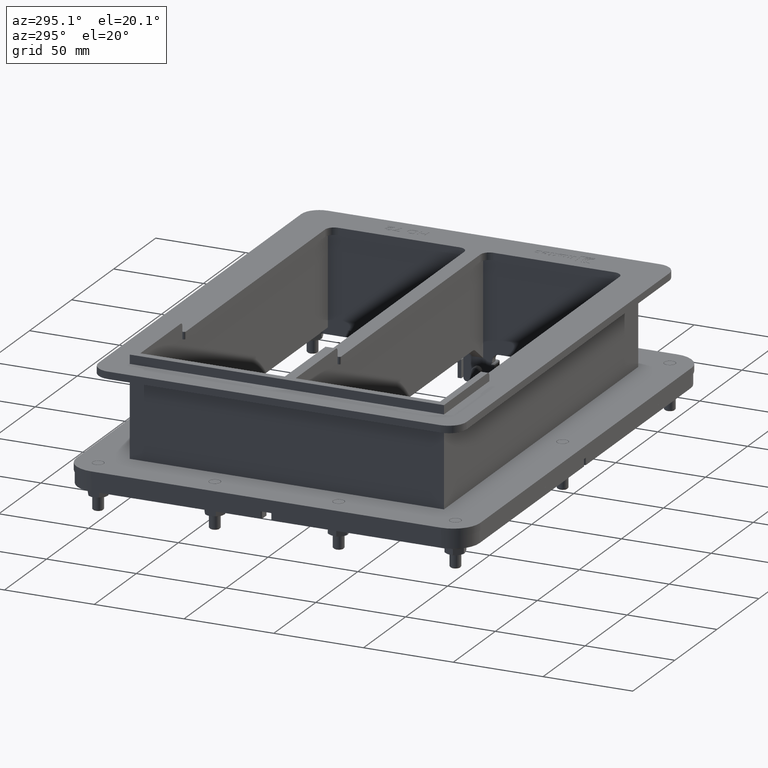
[diagram: clean part render]
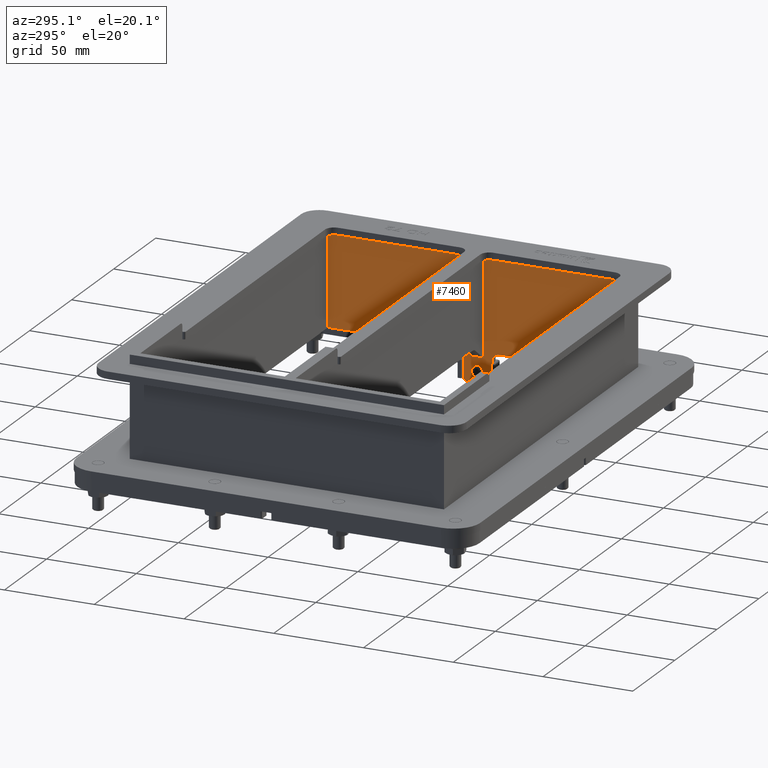
[diagram: same view with one face highlighted and labeled with its STEP entity id]
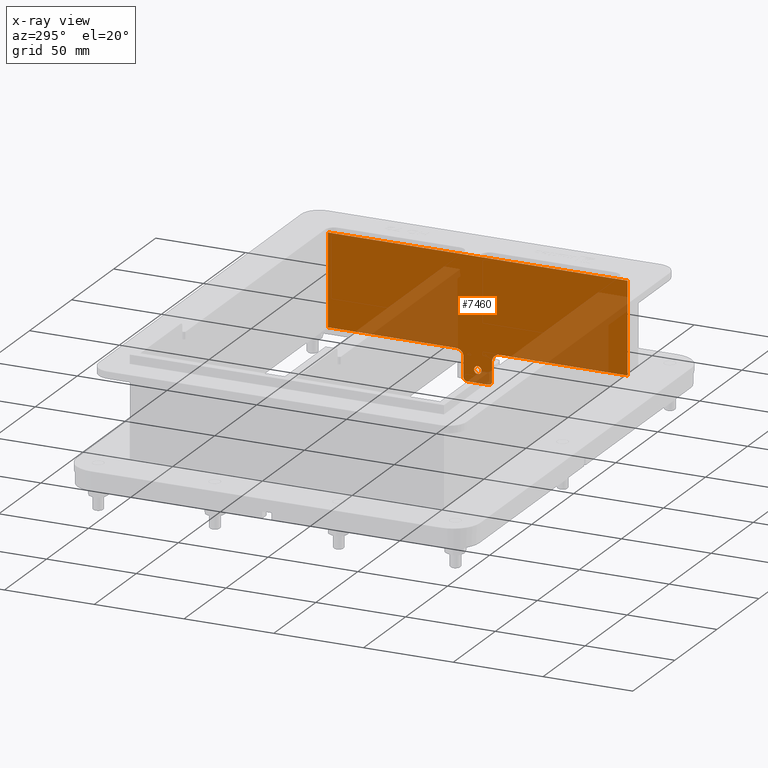
[diagram: x-ray of the same camera — body ghosted, the highlighted face saturated]
A machine part, auxiliary view. The second image highlights one B-rep face of the part: STEP entity #7460.
The next image is the same camera in x-ray: the body ghosted, the highlighted face saturated — about 32% of this face is hidden behind the body in this view.
In plain terms, the highlighted planar face has unit normal (-1, 0, -0).
Its self-contained STEP definition (entity closure, byte-faithful):
#505=FACE_BOUND('',#1433,.T.);
#632=PLANE('',#8338);
#969=FACE_OUTER_BOUND('',#1432,.T.);
#1432=EDGE_LOOP('',(#6075,#6076,#6077,#6078,#6079,#6080,#6081,#6082,#6083,
#6084,#6085,#6086));
#1433=EDGE_LOOP('',(#6087));
#1945=LINE('',#11708,#2662);
#1957=LINE('',#11746,#2674);
#1962=LINE('',#11757,#2679);
#1964=LINE('',#11764,#2681);
#1966=LINE('',#11768,#2683);
#1967=LINE('',#11769,#2684);
#1968=LINE('',#11772,#2685);
#1969=LINE('',#11773,#2686);
#2662=VECTOR('',#9554,10.);
#2674=VECTOR('',#9588,10.);
#2679=VECTOR('',#9599,10.);
#2681=VECTOR('',#9607,10.);
#2683=VECTOR('',#9611,10.);
#2684=VECTOR('',#9612,10.);
#2685=VECTOR('',#9615,10.);
#2686=VECTOR('',#9616,10.);
#3256=CIRCLE('',#8328,2.067);
#3257=CIRCLE('',#8330,4.);
#3258=CIRCLE('',#8333,4.);
#3259=CIRCLE('',#8336,2.);
#3260=CIRCLE('',#8339,2.);
#3612=VERTEX_POINT('',#11705);
#3613=VERTEX_POINT('',#11707);
#3625=VERTEX_POINT('',#11735);
#3626=VERTEX_POINT('',#11739);
#3627=VERTEX_POINT('',#11740);
#3628=VERTEX_POINT('',#11745);
#3629=VERTEX_POINT('',#11749);
#3630=VERTEX_POINT('',#11751);
#3631=VERTEX_POINT('',#11755);
#3632=VERTEX_POINT('',#11759);
#3633=VERTEX_POINT('',#11763);
#3634=VERTEX_POINT('',#11767);
#3635=VERTEX_POINT('',#11771);
#4483=EDGE_CURVE('',#3613,#3612,#1945,.F.);
#4497=EDGE_CURVE('',#3625,#3625,#3256,.T.);
#4499=EDGE_CURVE('',#3626,#3627,#3257,.T.);
#4502=EDGE_CURVE('',#3628,#3627,#1957,.T.);
#4505=EDGE_CURVE('',#3629,#3630,#3258,.T.);
#4508=EDGE_CURVE('',#3629,#3631,#1962,.T.);
#4509=EDGE_CURVE('',#3628,#3632,#3259,.T.);
#4511=EDGE_CURVE('',#3633,#3632,#1964,.T.);
#4513=EDGE_CURVE('',#3612,#3634,#1966,.F.);
#4514=EDGE_CURVE('',#3634,#3630,#1967,.T.);
#4515=EDGE_CURVE('',#3633,#3631,#3260,.T.);
#4516=EDGE_CURVE('',#3626,#3635,#1968,.T.);
#4517=EDGE_CURVE('',#3635,#3613,#1969,.F.);
#6075=ORIENTED_EDGE('',*,*,#4483,.T.);
#6076=ORIENTED_EDGE('',*,*,#4513,.T.);
#6077=ORIENTED_EDGE('',*,*,#4514,.T.);
#6078=ORIENTED_EDGE('',*,*,#4505,.F.);
#6079=ORIENTED_EDGE('',*,*,#4508,.T.);
#6080=ORIENTED_EDGE('',*,*,#4515,.F.);
#6081=ORIENTED_EDGE('',*,*,#4511,.T.);
#6082=ORIENTED_EDGE('',*,*,#4509,.F.);
#6083=ORIENTED_EDGE('',*,*,#4502,.T.);
#6084=ORIENTED_EDGE('',*,*,#4499,.F.);
#6085=ORIENTED_EDGE('',*,*,#4516,.T.);
#6086=ORIENTED_EDGE('',*,*,#4517,.T.);
#6087=ORIENTED_EDGE('',*,*,#4497,.T.);
#7460=ADVANCED_FACE('',(#969,#505),#632,.T.);
#8328=AXIS2_PLACEMENT_3D('',#11736,#9577,#9578);
#8330=AXIS2_PLACEMENT_3D('',#11741,#9582,#9583);
#8333=AXIS2_PLACEMENT_3D('',#11752,#9593,#9594);
#8336=AXIS2_PLACEMENT_3D('',#11760,#9602,#9603);
#8338=AXIS2_PLACEMENT_3D('',#11766,#9609,#9610);
#8339=AXIS2_PLACEMENT_3D('',#11770,#9613,#9614);
#9554=DIRECTION('',(1.,0.,0.));
#9577=DIRECTION('center_axis',(0.,0.,-1.));
#9578=DIRECTION('ref_axis',(1.,0.,0.));
#9582=DIRECTION('center_axis',(0.,0.,1.));
#9583=DIRECTION('ref_axis',(-0.707106781186549,0.707106781186546,0.));
#9588=DIRECTION('',(-1.40980701539702E-16,1.,0.));
#9593=DIRECTION('center_axis',(0.,0.,1.));
#9594=DIRECTION('ref_axis',(0.707106781186547,0.707106781186548,0.));
#9599=DIRECTION('',(-1.40980701539702E-16,-1.,0.));
#9602=DIRECTION('center_axis',(0.,0.,-1.));
#9603=DIRECTION('ref_axis',(0.707106781186547,-0.707106781186548,0.));
#9607=DIRECTION('',(1.,0.,0.));
#9609=DIRECTION('center_axis',(0.,0.,1.));
#9610=DIRECTION('ref_axis',(1.,0.,0.));
#9611=DIRECTION('',(1.93082265152201E-16,1.,0.));
#9612=DIRECTION('',(1.,1.0978719650187E-16,0.));
#9613=DIRECTION('center_axis',(0.,0.,-1.));
#9614=DIRECTION('ref_axis',(-0.707106781186547,-0.707106781186548,0.));
#9615=DIRECTION('',(1.,1.0978719650187E-16,0.));
#9616=DIRECTION('',(-5.79246795456603E-16,-1.,0.));
#11705=CARTESIAN_POINT('',(-83.5,28.,2.));
#11707=CARTESIAN_POINT('',(83.5,28.,2.));
#11708=CARTESIAN_POINT('',(20.225,28.,2.));
#11735=CARTESIAN_POINT('',(-2.067,-33.,1.99999999999999));
#11736=CARTESIAN_POINT('Origin',(0.,-33.,1.99999999999999));
#11739=CARTESIAN_POINT('',(12.,-23.,2.));
#11740=CARTESIAN_POINT('',(8.,-27.,2.));
#11741=CARTESIAN_POINT('Origin',(12.,-27.,2.));
#11745=CARTESIAN_POINT('',(8.,-38.,2.));
#11746=CARTESIAN_POINT('',(8.,-40.,2.));
#11749=CARTESIAN_POINT('',(-8.,-27.,2.));
#11751=CARTESIAN_POINT('',(-12.,-23.,2.));
#11752=CARTESIAN_POINT('Origin',(-12.,-27.,2.));
#11755=CARTESIAN_POINT('',(-8.,-38.,2.));
#11757=CARTESIAN_POINT('',(-7.99999999999999,23.,2.));
#11759=CARTESIAN_POINT('',(6.,-40.,2.));
#11760=CARTESIAN_POINT('Origin',(6.,-38.,2.));
#11763=CARTESIAN_POINT('',(-6.,-40.,2.));
#11764=CARTESIAN_POINT('',(-8.,-40.,2.));
#11766=CARTESIAN_POINT('Origin',(-8.88178419700125E-15,-4.44089209850063E-15,
2.));
#11767=CARTESIAN_POINT('',(-83.5,-23.,2.));
#11768=CARTESIAN_POINT('',(-83.5,11.5,2.));
#11769=CARTESIAN_POINT('',(40.45,-23.,2.));
#11770=CARTESIAN_POINT('Origin',(-6.,-38.,2.));
#11771=CARTESIAN_POINT('',(83.5,-23.,2.));
#11772=CARTESIAN_POINT('',(40.45,-23.,2.));
#11773=CARTESIAN_POINT('',(83.5,-11.5,2.));